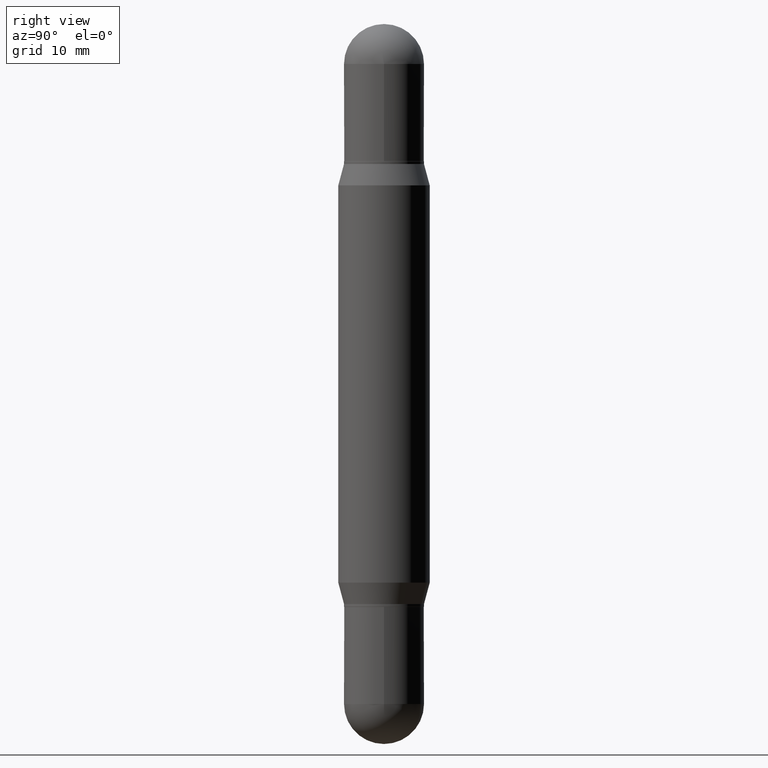
[diagram: clean part render]
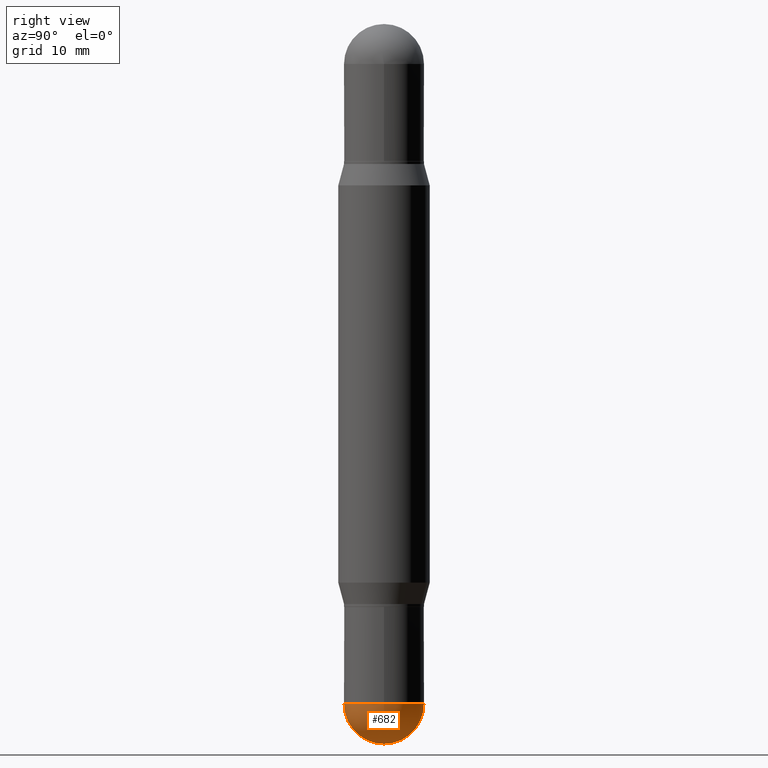
[diagram: same view with one face highlighted and labeled with its STEP entity id]
A machine part, right view. The second image highlights one B-rep face of the part: STEP entity #682.
In plain terms, the highlighted spherical surface has radius 3.5001 mm.
Its self-contained STEP definition (entity closure, byte-faithful):
#13 = FACE_OUTER_BOUND ( 'NONE', #970, .T. ) ;
#15 = ORIENTED_EDGE ( 'NONE', *, *, #48, .T. ) ;
#20 = CIRCLE ( 'NONE', #889, 0.1378000000000000613 ) ;
#29 = VERTEX_POINT ( 'NONE', #937 ) ;
#48 = EDGE_CURVE ( 'NONE', #29, #235, #565, .T. ) ;
#72 = CARTESIAN_POINT ( 'NONE',  ( 5.760493897703991812E-29, -8.132993245951958544E-15, -2.342500000000000249 ) ) ;
#80 = AXIS2_PLACEMENT_3D ( 'NONE', #1044, #1062, #552 ) ;
#146 = EDGE_CURVE ( 'NONE', #330, #235, #529, .T. ) ;
#189 = CARTESIAN_POINT ( 'NONE',  ( 9.622522569852254583E-16, 0.1377999999999919289, -2.342500000000000693 ) ) ;
#217 = DIRECTION ( 'NONE',  ( 1.000000000000000000, -6.982962677686261977E-15, 0.000000000000000000 ) ) ;
#235 = VERTEX_POINT ( 'NONE', #189 ) ;
#290 = AXIS2_PLACEMENT_3D ( 'NONE', #877, #539, #623 ) ;
#330 = VERTEX_POINT ( 'NONE', #918 ) ;
#339 = ORIENTED_EDGE ( 'NONE', *, *, #419, .F. ) ;
#352 = CARTESIAN_POINT ( 'NONE',  ( -9.791278898773611023E-16, -0.1378000000000082215, -2.342499999999999361 ) ) ;
#419 = EDGE_CURVE ( 'NONE', #1091, #330, #674, .T. ) ;
#515 = AXIS2_PLACEMENT_3D ( 'NONE', #72, #601, #771 ) ;
#529 = CIRCLE ( 'NONE', #290, 0.1378000000000000891 ) ;
#539 = DIRECTION ( 'NONE',  ( -2.445468806185136597E-29, 3.491481338843145583E-15, 1.000000000000000000 ) ) ;
#552 = DIRECTION ( 'NONE',  ( 6.982962677686265922E-15, 1.000000000000000000, -3.964946289788478530E-15 ) ) ;
#565 = CIRCLE ( 'NONE', #515, 0.1378000000000000613 ) ;
#584 = CARTESIAN_POINT ( 'NONE',  ( 5.760493897703991812E-29, -8.132993245951958544E-15, -2.342500000000000249 ) ) ;
#601 = DIRECTION ( 'NONE',  ( 1.000000000000000000, -6.982962677686265922E-15, 4.883557194083112340E-29 ) ) ;
#620 = EDGE_CURVE ( 'NONE', #29, #1091, #20, .T. ) ;
#623 = DIRECTION ( 'NONE',  ( 1.000000000000000000, -6.982962677686261977E-15, 0.000000000000000000 ) ) ;
#639 = ORIENTED_EDGE ( 'NONE', *, *, #620, .F. ) ;
#642 = DIRECTION ( 'NONE',  ( -2.445468806185136597E-29, 3.491481338843145583E-15, 1.000000000000000000 ) ) ;
#674 = CIRCLE ( 'NONE', #1035, 0.1378000000000000891 ) ;
#682 = ADVANCED_FACE ( 'NONE', ( #13 ), #960, .T. ) ;
#738 = ORIENTED_EDGE ( 'NONE', *, *, #146, .F. ) ;
#771 = DIRECTION ( 'NONE',  ( 6.982962677686265922E-15, 1.000000000000000000, 0.000000000000000000 ) ) ;
#815 = CARTESIAN_POINT ( 'NONE',  ( 5.728510678488681895E-29, -8.178795036240068442E-15, -2.342499999999999805 ) ) ;
#846 = DIRECTION ( 'NONE',  ( -1.000000000000000000, 7.105427357601001070E-15, -4.926315508542082329E-29 ) ) ;
#877 = CARTESIAN_POINT ( 'NONE',  ( 5.728510678488681895E-29, -8.178795036240068442E-15, -2.342499999999999805 ) ) ;
#889 = AXIS2_PLACEMENT_3D ( 'NONE', #584, #846, #925 ) ;
#918 = CARTESIAN_POINT ( 'NONE',  ( 0.1378000000000000891, -8.556922465236779525E-15, -2.342499999999999805 ) ) ;
#925 = DIRECTION ( 'NONE',  ( -7.105427357601000281E-15, -1.000000000000000000, 0.000000000000000000 ) ) ;
#937 = CARTESIAN_POINT ( 'NONE',  ( 6.103371594928750541E-29, -8.605681557998418845E-15, -2.480300000000000171 ) ) ;
#960 = SPHERICAL_SURFACE ( 'NONE', #80, 0.1378000000000000613 ) ;
#970 = EDGE_LOOP ( 'NONE', ( #639, #15, #738, #339 ) ) ;
#1035 = AXIS2_PLACEMENT_3D ( 'NONE', #815, #642, #217 ) ;
#1044 = CARTESIAN_POINT ( 'NONE',  ( 5.760493897703991812E-29, -8.132993245951958544E-15, -2.342500000000000249 ) ) ;
#1062 = DIRECTION ( 'NONE',  ( -1.000000000000000000, 6.982962677686265922E-15, -4.883557194083112901E-29 ) ) ;
#1091 = VERTEX_POINT ( 'NONE', #352 ) ;